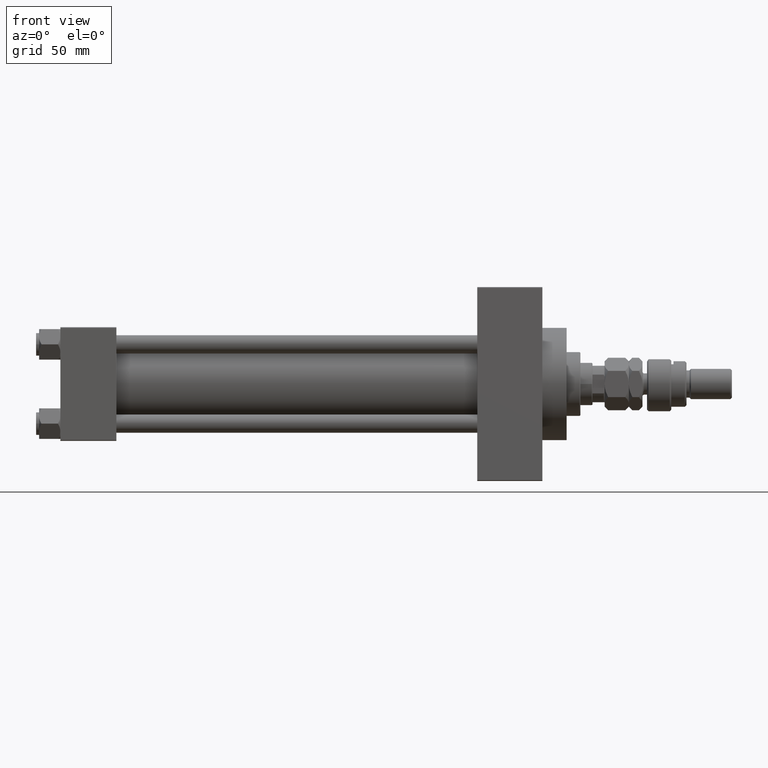
[diagram: clean part render]
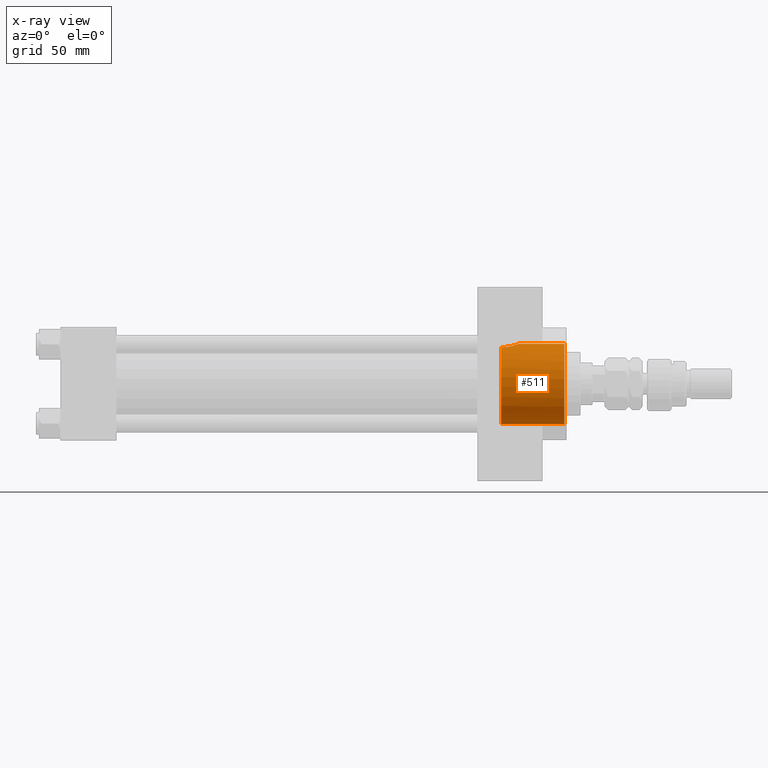
[diagram: x-ray — body ghosted, one internal face saturated and labeled with its STEP entity id]
A machine part, front view, then the same camera in x-ray: the body is ghosted and one INTERNAL B-rep face — a face not visible from any outside direction — is saturated and labeled: STEP entity #511.
In plain terms, the highlighted cylindrical surface (partial cylindrical patch) has radius 26.5 mm, axis along (1, 0, 0).
Its self-contained STEP definition (entity closure, byte-faithful):
#511 = ADVANCED_FACE ( 'NONE', ( #49425 ), #49173, .F. ) ;
#893 = EDGE_CURVE ( 'NONE', #24885, #22853, #7538, .T. ) ;
#1148 = CARTESIAN_POINT ( 'NONE',  ( 300.8553297434206115, -5.616857363200519870, 25.89992295911057241 ) ) ;
#1376 = ORIENTED_EDGE ( 'NONE', *, *, #11760, .F. ) ;
#1400 = CARTESIAN_POINT ( 'NONE',  ( 302.4011065554138327, -1.483758503940585394, 26.46850309434598714 ) ) ;
#2968 = EDGE_CURVE ( 'NONE', #42199, #27555, #10818, .T. ) ;
#5228 = CARTESIAN_POINT ( 'NONE',  ( 302.1654842721632690, -2.575241489874374512, 26.37710048711162969 ) ) ;
#5699 = ORIENTED_EDGE ( 'NONE', *, *, #2968, .T. ) ;
#5890 = AXIS2_PLACEMENT_3D ( 'NONE', #27723, #47288, #38442 ) ;
#6929 = CARTESIAN_POINT ( 'NONE',  ( 301.2276638786152034, -4.981583166679977026, 26.02957788900645397 ) ) ;
#7000 = DIRECTION ( 'NONE',  ( 0.000000000000000000, 0.000000000000000000, -1.000000000000000000 ) ) ;
#7080 = VECTOR ( 'NONE', #20250, 1000.000000000000000 ) ;
#7283 = EDGE_CURVE ( 'NONE', #45381, #42199, #26502, .T. ) ;
#7538 = CIRCLE ( 'NONE', #5890, 26.50000000000000355 ) ;
#9537 = CARTESIAN_POINT ( 'NONE',  ( 293.7216423275558554, -10.36418010715238402, 24.38933169417624924 ) ) ;
#10724 = CARTESIAN_POINT ( 'NONE',  ( 301.8335546017132174, -3.642695553053319824, 26.25084325021121501 ) ) ;
#10818 = CIRCLE ( 'NONE', #17309, 26.50000000000000355 ) ;
#11323 = DIRECTION ( 'NONE',  ( 1.000000000000000000, -0.000000000000000000, -0.000000000000000000 ) ) ;
#11760 = EDGE_CURVE ( 'NONE', #45381, #24885, #17858, .T. ) ;
#13117 = CARTESIAN_POINT ( 'NONE',  ( 295.5115735695663943, -9.881194972351266870, 24.58915736193082324 ) ) ;
#13325 = ORIENTED_EDGE ( 'NONE', *, *, #14511, .F. ) ;
#14511 = EDGE_CURVE ( 'NONE', #22853, #27555, #43374, .T. ) ;
#14554 = CARTESIAN_POINT ( 'NONE',  ( 302.0665133812162821, -2.938253791439191964, 26.33899517628734088 ) ) ;
#15069 = CARTESIAN_POINT ( 'NONE',  ( 291.4868983507926714, -10.49443499905853372, 24.33364968799253347 ) ) ;
#16674 = CARTESIAN_POINT ( 'NONE',  ( 299.9981355541606263, -6.811571481472472378, 25.61680511670813942 ) ) ;
#16921 = CARTESIAN_POINT ( 'NONE',  ( 298.6874981071936190, -8.077221093107597838, 25.24030799844106099 ) ) ;
#17309 = AXIS2_PLACEMENT_3D ( 'NONE', #40132, #32486, #20310 ) ;
#17858 = B_SPLINE_CURVE_WITH_KNOTS ( 'NONE', 3,
 ( #33847, #36220, #1400, #5228, #14554, #10724, #24535, #41738, #6929, #1148, #25038, #16674, #40296, #16921, #32157, #40041, #20735, #32405, #32656, #47899, #13117, #44355, #9537, #42747, #15069, #38429 ),
 .UNSPECIFIED., .F., .F.,
 ( 4, 2, 2, 2, 2, 2, 2, 2, 2, 2, 2, 2, 4 ),
 ( 0.01781170071191076620, 0.02003745927526340981, 0.02115033855693971079, 0.02226321783861601525, 0.02337609712029231623, 0.02448897640196862069, 0.02671473496532131980, 0.02782761424699772834, 0.02894049352867413688, 0.03005337281035054542, 0.03116625209202695396, 0.03339201065537961144, 0.03561776921873227586 ),
 .UNSPECIFIED. ) ;
#18716 = CARTESIAN_POINT ( 'NONE',  ( 290.7399999999999523, 0.000000000000000000, -26.50000000000000355 ) ) ;
#18966 = CARTESIAN_POINT ( 'NONE',  ( 290.7399999999999523, -10.40398000767013542, 24.37226292324945831 ) ) ;
#20250 = DIRECTION ( 'NONE',  ( 1.000000000000000000, -0.000000000000000000, -0.000000000000000000 ) ) ;
#20310 = DIRECTION ( 'NONE',  ( 0.000000000000000000, 0.000000000000000000, -1.000000000000000000 ) ) ;
#20735 = CARTESIAN_POINT ( 'NONE',  ( 297.4947120380321621, -8.931495953537172738, 24.95025484238638569 ) ) ;
#22244 = VECTOR ( 'NONE', #38715, 1000.000000000000000 ) ;
#22853 = VERTEX_POINT ( 'NONE', #18716 ) ;
#24062 = CARTESIAN_POINT ( 'NONE',  ( 290.7399999999999523, 0.000000000000000000, -26.50000000000000355 ) ) ;
#24535 = CARTESIAN_POINT ( 'NONE',  ( 301.6993435614955956, -3.985990130492278460, 26.20070574291653998 ) ) ;
#24885 = VERTEX_POINT ( 'NONE', #18966 ) ;
#25023 = CARTESIAN_POINT ( 'NONE',  ( 332.4999999999999432, 0.000000000000000000, -26.50000000000000355 ) ) ;
#25038 = CARTESIAN_POINT ( 'NONE',  ( 300.6508763872860186, -5.926808359427496953, 25.83050513016100069 ) ) ;
#25461 = ORIENTED_EDGE ( 'NONE', *, *, #893, .F. ) ;
#26242 = CARTESIAN_POINT ( 'NONE',  ( 290.7399999999999523, 3.245314017740486554E-15, 26.50000000000000355 ) ) ;
#26502 = LINE ( 'NONE', #26242, #22244 ) ;
#27325 = CARTESIAN_POINT ( 'NONE',  ( 332.4999999999999432, 3.245314017740486554E-15, 26.50000000000000355 ) ) ;
#27555 = VERTEX_POINT ( 'NONE', #25023 ) ;
#27723 = CARTESIAN_POINT ( 'NONE',  ( 290.7399999999999523, 0.000000000000000000, 0.000000000000000000 ) ) ;
#32157 = CARTESIAN_POINT ( 'NONE',  ( 298.3983008714430412, -8.308216825530779559, 25.16494175890554530 ) ) ;
#32405 = CARTESIAN_POINT ( 'NONE',  ( 296.8603660912149280, -9.291949300782571086, 24.81826977973610582 ) ) ;
#32486 = DIRECTION ( 'NONE',  ( 1.000000000000000000, 0.000000000000000000, 0.000000000000000000 ) ) ;
#32656 = CARTESIAN_POINT ( 'NONE',  ( 296.5335921408432114, -9.455792512420352125, 24.75606841526505519 ) ) ;
#33847 = CARTESIAN_POINT ( 'NONE',  ( 302.4800000000001319, 1.369086566889278633E-14, 26.50000000000006750 ) ) ;
#36220 = CARTESIAN_POINT ( 'NONE',  ( 302.4799999999999613, -0.7466733969459847797, 26.50000000000001776 ) ) ;
#36718 = AXIS2_PLACEMENT_3D ( 'NONE', #41810, #11323, #7000 ) ;
#38429 = CARTESIAN_POINT ( 'NONE',  ( 290.7399999999999523, -10.40398000767013542, 24.37226292324945831 ) ) ;
#38442 = DIRECTION ( 'NONE',  ( 0.000000000000000000, 0.000000000000000000, -1.000000000000000000 ) ) ;
#38715 = DIRECTION ( 'NONE',  ( 1.000000000000000000, -0.000000000000000000, -0.000000000000000000 ) ) ;
#40041 = CARTESIAN_POINT ( 'NONE',  ( 297.8022832347252233, -8.734885810677026186, 25.02004257437571866 ) ) ;
#40132 = CARTESIAN_POINT ( 'NONE',  ( 332.4999999999999432, 0.000000000000000000, 0.000000000000000000 ) ) ;
#40296 = CARTESIAN_POINT ( 'NONE',  ( 299.5076201536011240, -7.348534936426574404, 25.46581292754182968 ) ) ;
#40474 = ORIENTED_EDGE ( 'NONE', *, *, #7283, .T. ) ;
#41066 = EDGE_LOOP ( 'NONE', ( #1376, #40474, #5699, #13325, #25461 ) ) ;
#41738 = CARTESIAN_POINT ( 'NONE',  ( 301.3963988635402984, -4.655434592126336035, 26.09007526830299284 ) ) ;
#41810 = CARTESIAN_POINT ( 'NONE',  ( 290.7399999999999523, 0.000000000000000000, 0.000000000000000000 ) ) ;
#42199 = VERTEX_POINT ( 'NONE', #27325 ) ;
#42747 = CARTESIAN_POINT ( 'NONE',  ( 292.2451057705675339, -10.50334255171940434, 24.32972513250578217 ) ) ;
#43374 = LINE ( 'NONE', #24062, #7080 ) ;
#44355 = CARTESIAN_POINT ( 'NONE',  ( 294.4459359432478323, -10.21777125531390773, 24.45211332338677579 ) ) ;
#45381 = VERTEX_POINT ( 'NONE', #49838 ) ;
#47288 = DIRECTION ( 'NONE',  ( 1.000000000000000000, 0.000000000000000000, 0.000000000000000000 ) ) ;
#47899 = CARTESIAN_POINT ( 'NONE',  ( 295.8600678267363264, -9.750145953289933942, 24.64162310621548357 ) ) ;
#49173 = CYLINDRICAL_SURFACE ( 'NONE', #36718, 26.50000000000000355 ) ;
#49425 = FACE_OUTER_BOUND ( 'NONE', #41066, .T. ) ;
#49838 = CARTESIAN_POINT ( 'NONE',  ( 302.4800000000001319, 1.369086566889278633E-14, 26.50000000000006750 ) ) ;